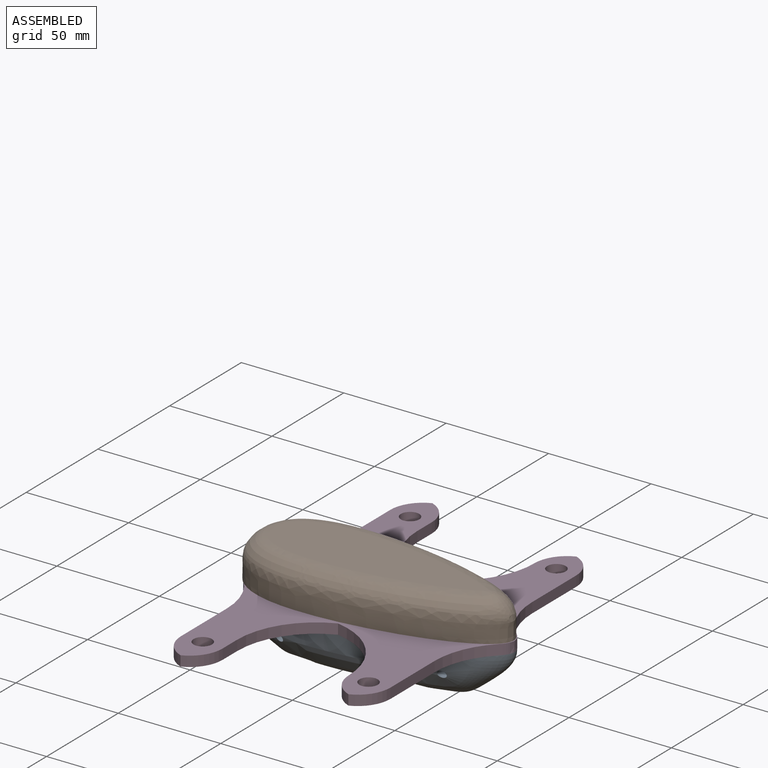
[diagram: assembled view]
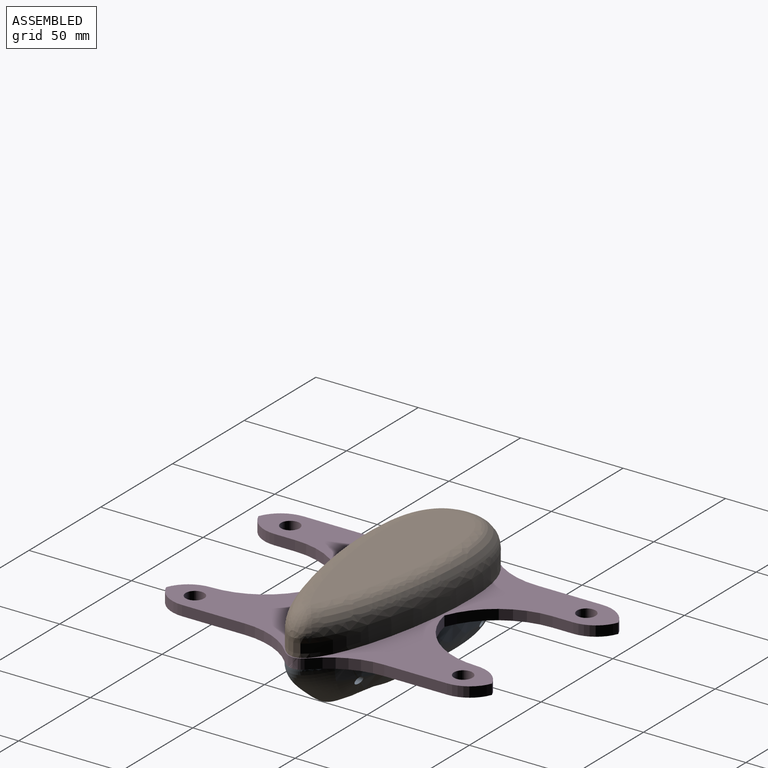
[diagram: assembled view, second angle]
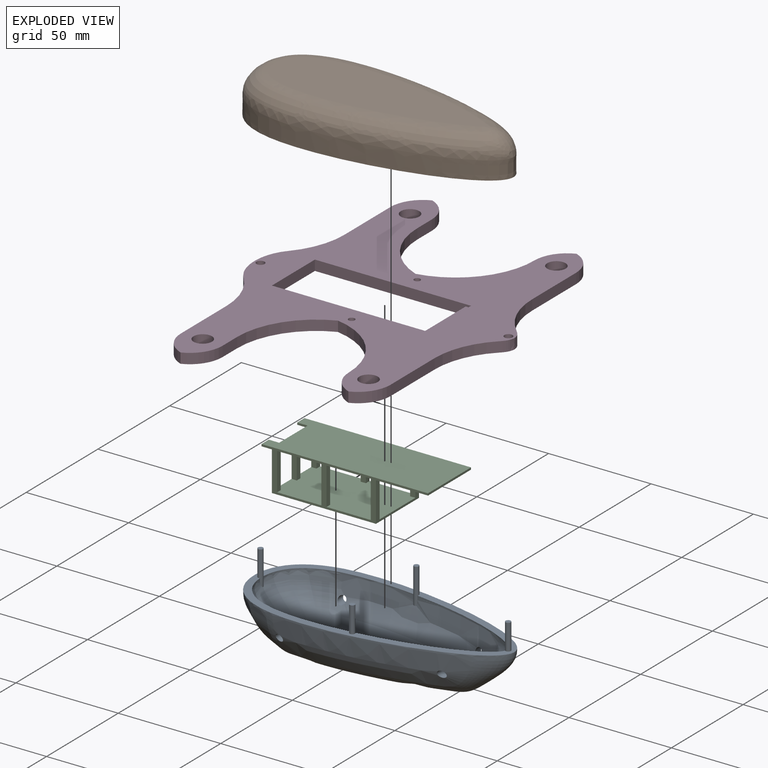
[diagram: exploded view]
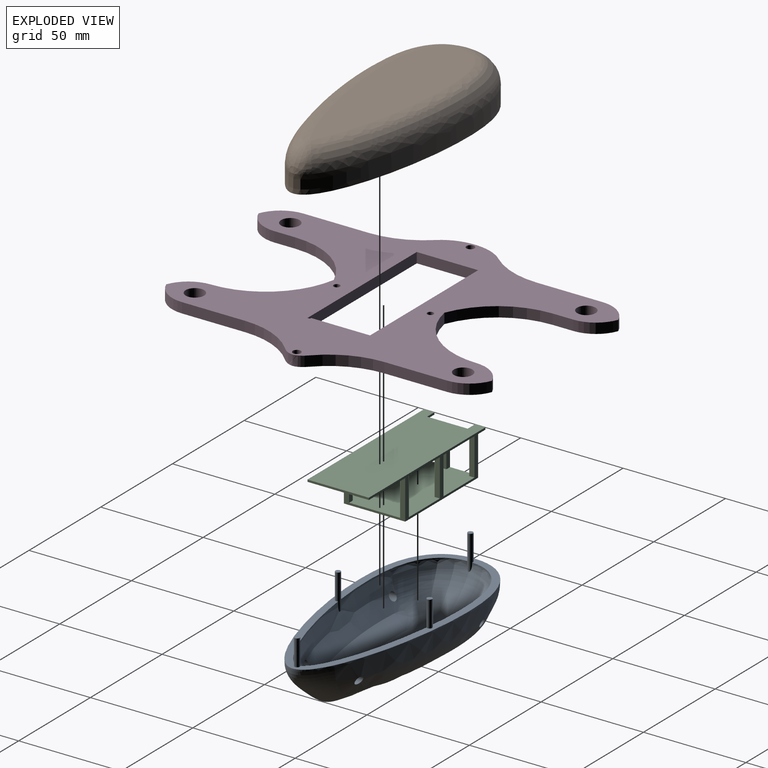
[diagram: exploded view, second angle]
ASSEMBLY  parts=4 mates=3
PART A: 39 faces, bbox 71.6x147x45.8 mm
  f0: extruded ~58.74x22mm, area 59.5mm2, adj f1,f33,f35,f36,f38
  f1: bspline ~94.05x34.15mm, area 2366.6mm2, adj f0,f2,f25,f26,f27,f28,f29,f30
  f2: extruded ~58.68x20.57mm, area 54.1mm2, adj f1,f3,f23,f25,f33,f35
  f3: offset ~70.98x32.26mm, area 668.5mm2, adj f2,f4,f18,f19,f20,f21,f22,f23
  f4: extruded ~58.68x20.57mm, area 54.1mm2, adj f3,f5,f16,f18,f23,f35
  f5: bspline ~95.97x34.26mm, area 2394.7mm2, adj f4,f6,f7,f14,f15,f16,f18,f19
  f6: extruded ~58.74x22mm, area 59.5mm2, adj f5,f16,f35,f36,f38
  f7: cylinder r=1.91mm len=5.91mm, axis (1,0,0), area 47.6mm2, adj f5,f8,f38
  f8: bspline ~98.86x37.82mm, area 2914.7mm2, adj f7,f9,f11,f12,f13,f15
  f9: plane 35.99x3.13mm, normal (0,0,-1), area 76mm2, adj f8,f10
  f10: bspline ~96.77x37.7mm, area 2894.6mm2, adj f9,f11,f12,f13,f30,f32
  f11: bspline ~63.88x25.15mm, area 844.4mm2, adj f8,f10,f12
  f12: extruded ~126.98x53.22mm, area 254.1mm2, adj f8,f10,f11,f13,f35
  f13: bspline ~51.31x27.15mm, area 1942.9mm2, adj f8,f10,f12
  f14: plane 1.68x0.43mm, normal (0,0,-1), area 0.4mm2, adj f5,f16
  f15: cylinder r=1.91mm len=4.54mm, axis (1,0,0), area 39mm2, adj f5,f8
  f16: cylinder r=1.27mm len=17.27mm, axis (0,0,-1), area 112mm2, adj f4,f5,f6,f14,f17,f35
  f17: plane 2.54x2.54mm, normal (0,0,1), area 5.1mm2, adj f16
  f18: offset ~14.97x9.9mm, area 5.5mm2, adj f3,f4,f5,f19
  f19: bspline ~6.14x5.25mm, area 1.3mm2, adj f3,f5,f18,f20
  f20: offset ~39.86x17.53mm, area 13.6mm2, adj f3,f5,f19
  f21: offset ~13.3x8.4mm, area 0mm2, adj f3,f5
  f22: offset ~21.07x9.46mm, area 0mm2, adj f3,f5
  f23: cylinder r=1.27mm len=15.96mm, axis (0,0,-1), area 107.7mm2, adj f2,f3,f4,f24,f35
  f24: plane 2.54x2.54mm, normal (0,0,1), area 5.1mm2, adj f23
  f25: offset ~14.95x10.87mm, area 12mm2, adj f1,f2,f3,f26
  f26: bspline ~6.4x5.92mm, area 7.4mm2, adj f1,f3,f25,f28
  f27: offset ~30.93x11.88mm, area 2.8mm2, adj f1,f3
  f28: offset ~31.35x16.92mm, area 16.4mm2, adj f1,f3,f26
  f29: plane 35.99x3.13mm, normal (0,0,1), area 76mm2, adj f1,f5
  f30: cylinder r=1.91mm len=5.91mm, axis (1,0,0), area 47.6mm2, adj f1,f10,f38
  f31: plane 1.68x0.43mm, normal (0,0,-1), area 0.4mm2, adj f1,f33
  f32: cylinder r=1.91mm len=4.54mm, axis (1,0,0), area 39mm2, adj f1,f10
  f33: cylinder r=1.27mm len=17.27mm, axis (0,0,-1), area 112mm2, adj f0,f1,f2,f31,f34,f35
  f34: plane 2.54x2.54mm, normal (0,0,1), area 5.1mm2, adj f33
  f35: plane 139.86x64.53mm, normal (0,0,1), area 1003.3mm2, adj f0,f2,f4,f6,f12,f16,f23,f33
  f36: cylinder r=1.27mm len=16.85mm, axis (0,0,-1), area 111.1mm2, adj f0,f6,f35,f37,f38
  f37: plane 2.54x2.54mm, normal (0,0,1), area 5.1mm2, adj f36
  f38: offset ~58.43x34.26mm, area 1444.7mm2, adj f0,f1,f5,f6,f7,f30,f36
PART B: 19 faces, bbox 64.5x139.9x19.1 mm
  f0: plane 139.86x64.53mm, normal (0,0,-1), area 1389.9mm2, adj f1,f3,f11,f13,f15,f17
  f1: extruded ~126.98x53.22mm, area 2644.6mm2, adj f0,f8,f9,f10
  f2: plane 104.96x33.1mm, normal (0,0,1), area 2535.8mm2, adj f8,f9
  f3: extruded ~116.74x43.22mm, area 1018.8mm2, adj f0,f5,f6,f7
  f4: plane 88.84x22.94mm, normal (0,0,-1), area 1458.5mm2, adj f5,f6
  f5: bspline ~111.61x26.31mm, area 1686.8mm2, adj f3,f4,f6,f7
  f6: bspline ~114.49x39.83mm, area 1954.3mm2, adj f3,f4,f5,f7
  f7: bspline ~17.85x10.16mm, area 72.9mm2, adj f3,f5,f6
  f8: bspline ~122.51x27.86mm, area 1995.8mm2, adj f1,f2,f9,f10
  f9: bspline ~123.56x48.99mm, area 2189.9mm2, adj f1,f2,f8,f10
  f10: bspline ~13.36x11.9mm, area 103.4mm2, adj f1,f8,f9
  f11: cylinder r=1.65mm len=6.86mm, axis (0,0,-1), area 71.1mm2, adj f0,f12
  f12: plane 3.3x3.3mm, normal (0,0,-1), area 8.6mm2, adj f11
  f13: cylinder r=1.65mm len=6.86mm, axis (0,0,-1), area 71.1mm2, adj f0,f14
  f14: plane 3.3x3.3mm, normal (0,0,-1), area 8.6mm2, adj f13
  f15: cylinder r=1.65mm len=6.86mm, axis (0,0,-1), area 71.1mm2, adj f0,f16
  f16: plane 3.3x3.3mm, normal (0,0,-1), area 8.6mm2, adj f15
  f17: cylinder r=1.65mm len=6.86mm, axis (0,0,-1), area 71.1mm2, adj f0,f18
  f18: plane 3.3x3.3mm, normal (0,0,-1), area 8.6mm2, adj f17
PART C: 30 faces, bbox 81.3x30x20.3 mm
  f0: plane 29.97x19.25mm, normal (1,0,0), area 122.7mm2, adj f6,f8,f19,f20,f21,f22,f24
  f1: plane 29.97x20.25mm, normal (-1,0,0), area 188.9mm2, adj f2,f4,f16,f17,f19,f20,f21,f22
  f2: plane 18.25x2.54mm, normal (0,-1,0), area 46.4mm2, adj f1,f3,f19,f24
  f3: plane 18.25x2.54mm, normal (1,0,0), area 46.4mm2, adj f2,f19,f20,f24
  f4: plane 18.25x2.54mm, normal (0,1,0), area 46.4mm2, adj f1,f5,f19,f24
  f5: plane 18.25x2.54mm, normal (1,0,0), area 46.4mm2, adj f4,f19,f21,f24
  f6: plane 18.25x2.54mm, normal (0,1,0), area 46.4mm2, adj f0,f7,f19,f24
  f7: plane 18.25x2.54mm, normal (-1,0,0), area 46.4mm2, adj f6,f19,f21,f24
  f8: plane 18.25x2.54mm, normal (0,-1,0), area 46.4mm2, adj f0,f9,f19,f24
  f9: plane 18.25x2.54mm, normal (-1,0,0), area 46.4mm2, adj f8,f19,f20,f24
  f10: plane 18.25x2.54mm, normal (1,0,0), area 46.4mm2, adj f12,f19,f20,f24
  f11: plane 18.25x2.54mm, normal (-1,0,0), area 46.4mm2, adj f12,f19,f20,f24
  f12: plane 18.25x2.54mm, normal (0,-1,0), area 46.4mm2, adj f10,f11,f19,f24
  f13: plane 18.25x2.54mm, normal (1,0,0), area 46.4mm2, adj f14,f19,f21,f24
  f14: plane 18.25x2.54mm, normal (0,1,0), area 46.4mm2, adj f13,f15,f19,f24
  f15: plane 18.25x2.54mm, normal (-1,0,0), area 46.4mm2, adj f14,f19,f21,f24
  f16: plane 18.25x2.54mm, normal (0,1,0), area 46.4mm2, adj f1,f18,f19,f24
  f17: plane 18.25x2.54mm, normal (0,-1,0), area 46.4mm2, adj f1,f18,f19,f24
  f18: plane 18.25x2.54mm, normal (1,0,0), area 46.4mm2, adj f16,f17,f19,f24
  f19: plane 50.8x29.97mm, normal (0,0,1), area 1477.4mm2, adj f0,f1,f2,f3,f4,f5,f6,f7
  f20: plane 81.28x20.25mm, normal (0,1,0), area 271.2mm2, adj f0,f1,f3,f9,f10,f11,f19,f22
  f21: plane 81.28x20.25mm, normal (0,-1,0), area 271.2mm2, adj f0,f1,f5,f7,f13,f15,f19,f22
  f22: plane 50.8x29.97mm, normal (0,0,-1), area 1522.6mm2, adj f0,f1,f20,f21
  f23: plane 81.28x29.97mm, normal (0,0,1), area 2335.5mm2, adj f1,f20,f21,f25,f26,f27,f28,f29
  f24: plane 81.28x29.97mm, normal (0,0,-1), area 2290.3mm2, adj f0,f1,f2,f3,f4,f5,f6,f7
  f25: plane 29.97x1mm, normal (1,0,0), area 30mm2, adj f20,f21,f23,f24
  f26: plane 5.08x1mm, normal (-1,0,0), area 5.1mm2, adj f20,f23,f24,f27
  f27: plane 5.08x1mm, normal (0,-1,0), area 5.1mm2, adj f1,f23,f24,f26
  f28: plane 5.08x1mm, normal (0,1,0), area 5.1mm2, adj f1,f23,f24,f29
  f29: plane 5.08x1mm, normal (-1,0,0), area 5.1mm2, adj f21,f23,f24,f28
PART D: 40 faces, bbox 175.6x127.4x5 mm
  f0: plane 175.63x127.44mm, normal (0,0,1), area 8940.9mm2, adj f2,f3,f4,f5,f6,f7,f8,f9
  f1: plane 175.63x127.44mm, normal (0,0,-1), area 8899mm2, adj f2,f3,f4,f5,f6,f7,f8,f9
  f2: extruded ~31.07x5.62mm, area 168.9mm2, adj f0,f1,f24,f31
  f3: plane 31.91x5mm, normal (0,1,0), area 159.5mm2, adj f0,f1,f24,f39
  f4: plane 10.11x5mm, normal (0,-1,0), area 50.5mm2, adj f0,f1,f26,f38
  f5: plane 30.65x5mm, normal (0,-1,0), area 153.2mm2, adj f0,f1,f27,f32
  f6: extruded ~12.08x5mm, area 70.4mm2, adj f0,f1,f27,f28
  f7: plane 30.65x5mm, normal (0,-1,0), area 153.2mm2, adj f0,f1,f28,f35
  f8: plane 10.11x5mm, normal (0,-1,0), area 50.5mm2, adj f0,f1,f29,f37
  f9: cylinder r=1.52mm len=5mm, axis (0,0,-1), area 47.9mm2, adj f0,f1
  f10: cylinder r=1.52mm len=5mm, axis (0,0,-1), area 47.9mm2, adj f0,f1
  f11: cylinder r=1.97mm len=5mm, axis (0,0,-1), area 61.8mm2, adj f0,f1
  f12: cylinder r=1.97mm len=5mm, axis (0,0,-1), area 61.8mm2, adj f0,f1
  f13: plane 31.91x5mm, normal (0,1,0), area 159.5mm2, adj f0,f1,f31,f36
  f14: cylinder r=4.51mm len=9.02mm, axis (0,0,1), area 141.6mm2, adj f0,f1
  f15: cylinder r=4.51mm len=9.02mm, axis (0,0,1), area 141.6mm2, adj f0,f1
  f16: cylinder r=4.51mm len=9.02mm, axis (0,0,1), area 141.6mm2, adj f0,f1
  f17: cylinder r=4.51mm len=9.02mm, axis (0,0,1), area 141.6mm2, adj f0,f1
  f18: plane 29.97x5mm, normal (0,-1,0), area 149.9mm2, adj f0,f1,f19,f21
  f19: plane 77.6x5mm, normal (1,0,0), area 378.6mm2, adj f0,f1,f18,f20,f22,f23
  f20: plane 29.97x1mm, normal (0,1,0), area 30mm2, adj f0,f19,f21,f22
  f21: plane 77.6x5mm, normal (-1,0,0), area 378.6mm2, adj f0,f1,f18,f20,f22,f23
  f22: plane 29.97x2.6mm, normal (0,0,1), area 78mm2, adj f19,f20,f21,f23
  f23: plane 29.97x4mm, normal (0,0.71,-0.71), area 169.5mm2, adj f1,f19,f21,f22
  f24: cylinder r=38.63mm len=25.52mm, axis (0,0,-1), area 139.4mm2, adj f0,f1,f2,f3
  f25: cylinder r=38.63mm len=37.75mm, axis (0,0,-1), area 267.3mm2, adj f0,f1,f26,f33
  f26: cylinder r=38.63mm len=35.83mm, axis (0,0,-1), area 229.3mm2, adj f0,f1,f4,f25
  f27: cylinder r=38.63mm len=27.99mm, axis (0,0,-1), area 156.5mm2, adj f0,f1,f5,f6
  f28: cylinder r=38.63mm len=27.99mm, axis (0,0,-1), area 156.5mm2, adj f0,f1,f6,f7
  f29: cylinder r=38.63mm len=35.83mm, axis (0,0,-1), area 229.3mm2, adj f0,f1,f8,f30
  f30: cylinder r=38.63mm len=37.75mm, axis (0,0,-1), area 267.3mm2, adj f0,f1,f29,f34
  f31: cylinder r=38.63mm len=25.52mm, axis (0,0,-1), area 139.4mm2, adj f0,f1,f2,f13
  f32: cylinder r=15.94mm len=14.86mm, axis (0,0,1), area 95.6mm2, adj f0,f1,f5,f33
  f33: cylinder r=15.94mm len=14.75mm, axis (0,0,-1), area 95.1mm2, adj f0,f1,f25,f32
  f34: cylinder r=15.94mm len=14.75mm, axis (0,0,-1), area 95.1mm2, adj f0,f1,f30,f35
  f35: cylinder r=15.94mm len=14.86mm, axis (0,0,-1), area 95.6mm2, adj f0,f1,f7,f34
  f36: cylinder r=15.94mm len=14.86mm, axis (0,0,1), area 95.6mm2, adj f0,f1,f13,f37
  f37: cylinder r=15.94mm len=14.86mm, axis (0,0,-1), area 95.6mm2, adj f0,f1,f8,f36
  f38: cylinder r=15.94mm len=14.86mm, axis (0,0,-1), area 95.6mm2, adj f0,f1,f4,f39
  f39: cylinder r=15.94mm len=14.86mm, axis (0,0,-1), area 95.6mm2, adj f0,f1,f3,f38
PLACE A rot(axis=(0,0,1),90deg) t=(-30.8,86.68,60.32)mm
PLACE B rot(axis=(0,0,1),90deg) t=(-31.18,86.68,84.04)mm
PLACE C t=(-49.78,86.68,45.06)mm
PLACE D rot(axis=(0,0,1),90deg) t=(-30.73,86.68,60.32)mm
MATE fastened B.f13 <-> A.f23  axis (0,0,-1) through (29.65,86.68,64.99)mm
MATE fastened A.f36 <-> D.f11  axis (0,0,1) through (-91.25,86.68,60.32)mm
MATE fastened C.f23 <-> D.f0  axis (0,0,1) through (-75.18,86.68,65.32)mm
